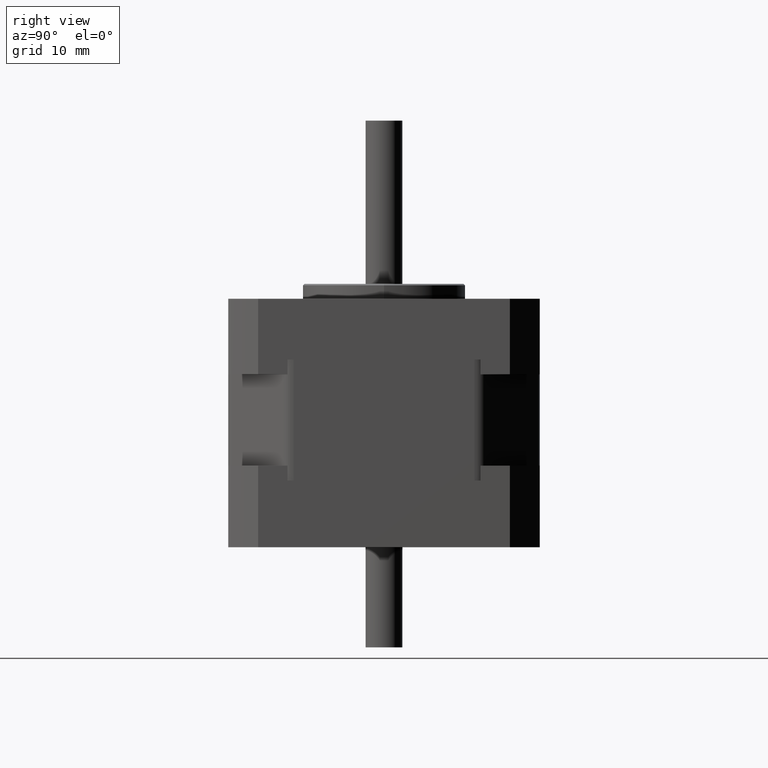
[diagram: clean part render]
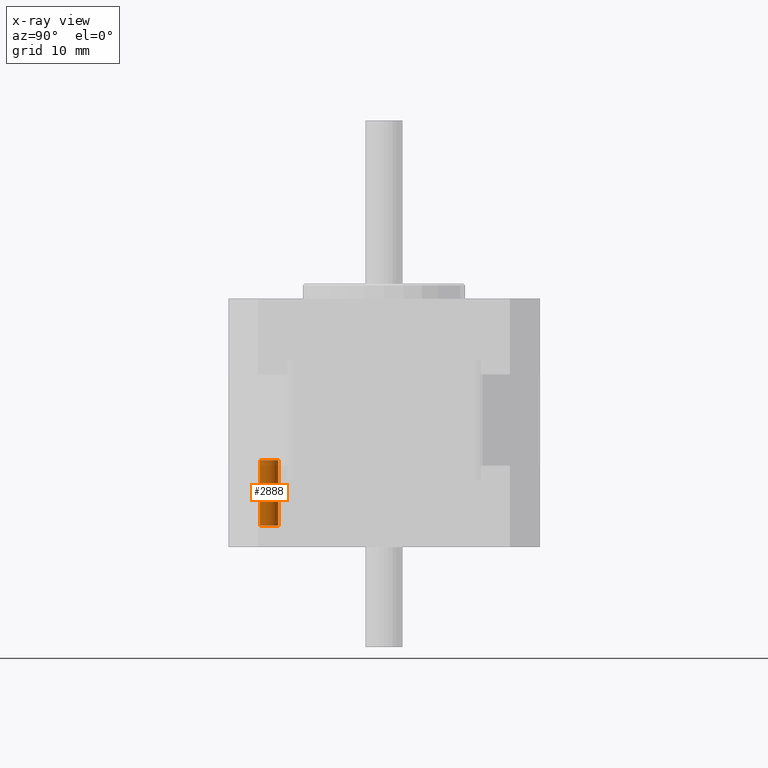
[diagram: x-ray — body ghosted, one internal face saturated and labeled with its STEP entity id]
A machine part, right view, then the same camera in x-ray: the body is ghosted and one INTERNAL B-rep face — a face not visible from any outside direction — is saturated and labeled: STEP entity #2888.
In plain terms, the highlighted cylindrical surface (bore or boss wall) has radius 1.25 mm, axis along (0, 0, 1).
Its self-contained STEP definition (entity closure, byte-faithful):
#80=FACE_BOUND('',#609,.T.);
#368=FACE_OUTER_BOUND('',#608,.T.);
#608=EDGE_LOOP('',(#2307));
#609=EDGE_LOOP('',(#2308));
#1135=CIRCLE('',#3227,1.25);
#1137=CIRCLE('',#3230,1.25);
#1348=VERTEX_POINT('',#4845);
#1350=VERTEX_POINT('',#4850);
#1675=EDGE_CURVE('',#1348,#1348,#1135,.T.);
#1677=EDGE_CURVE('',#1350,#1350,#1137,.T.);
#2307=ORIENTED_EDGE('',*,*,#1677,.T.);
#2308=ORIENTED_EDGE('',*,*,#1675,.F.);
#2567=CYLINDRICAL_SURFACE('',#3229,1.25);
#2888=ADVANCED_FACE('',(#368,#80),#2567,.T.);
#3227=AXIS2_PLACEMENT_3D('',#4846,#4006,#4007);
#3229=AXIS2_PLACEMENT_3D('',#4849,#4010,#4011);
#3230=AXIS2_PLACEMENT_3D('',#4851,#4012,#4013);
#4006=DIRECTION('center_axis',(0.,1.06548401849177E-32,1.));
#4007=DIRECTION('ref_axis',(0.,-1.,0.));
#4010=DIRECTION('center_axis',(0.,1.06548401849177E-32,1.));
#4011=DIRECTION('ref_axis',(0.,1.,0.));
#4012=DIRECTION('center_axis',(0.,1.06548401849177E-32,1.));
#4013=DIRECTION('ref_axis',(0.,1.,0.));
#4845=CARTESIAN_POINT('',(-15.5,-14.25,-5.4261525));
#4846=CARTESIAN_POINT('Origin',(-15.5,-15.5,-5.4261525));
#4849=CARTESIAN_POINT('Origin',(-15.5,-15.5,-9.7));
#4850=CARTESIAN_POINT('',(-15.5,-14.25,-14.25));
#4851=CARTESIAN_POINT('Origin',(-15.5,-15.5,-14.25));